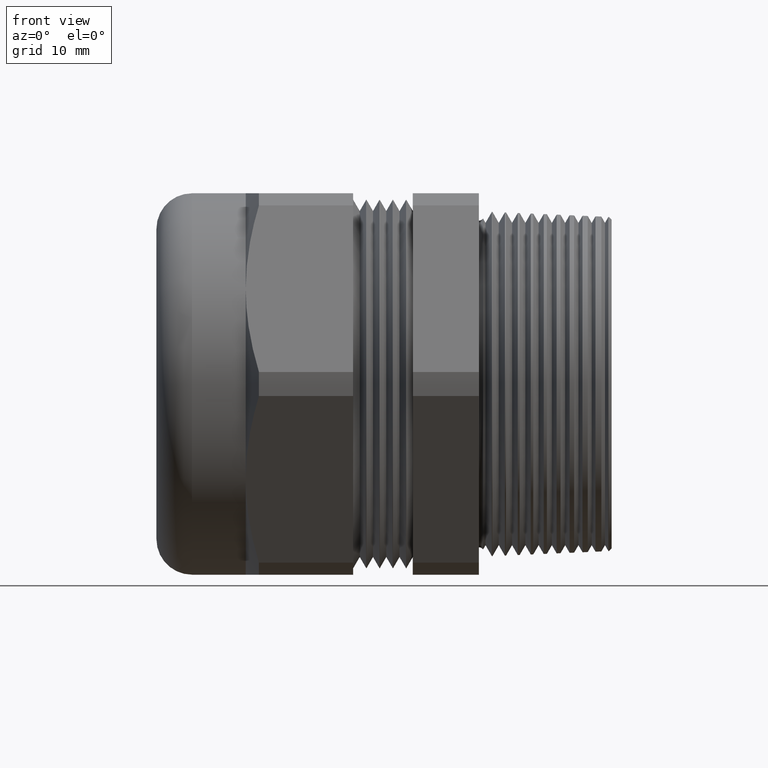
[diagram: clean part render]
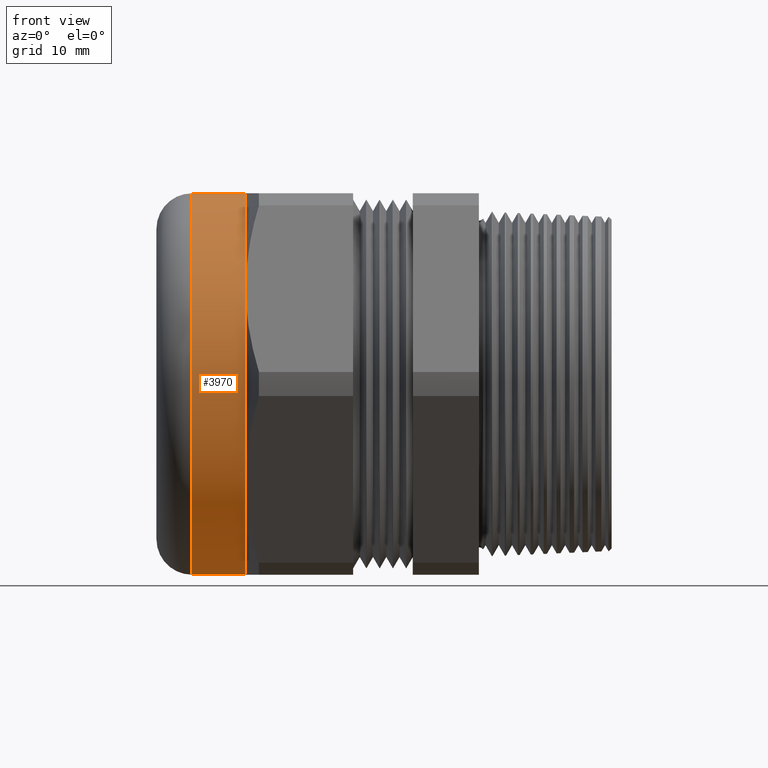
[diagram: same view with one face highlighted and labeled with its STEP entity id]
A machine part, front view. The second image highlights one B-rep face of the part: STEP entity #3970.
In plain terms, the highlighted cylindrical surface (partial cylindrical patch) has radius 22.987 mm, axis along (-1, 0, 0).
Its self-contained STEP definition (entity closure, byte-faithful):
#265 = VERTEX_POINT ( 'NONE', #1580 ) ;
#266 = VERTEX_POINT ( 'NONE', #1579 ) ;
#443 = VERTEX_POINT ( 'NONE', #1920 ) ;
#831 = VERTEX_POINT ( 'NONE', #2674 ) ;
#874 = EDGE_CURVE ( 'NONE', #876, #265, #2776, .T. ) ;
#876 = VERTEX_POINT ( 'NONE', #2772 ) ;
#881 = VERTEX_POINT ( 'NONE', #2764 ) ;
#884 = EDGE_CURVE ( 'NONE', #881, #266, #2757, .T. ) ;
#1579 = CARTESIAN_POINT ( 'NONE',  ( -1.361399999999999900, 1.108305353228354500E-016, -0.9049999999999999200 ) ) ;
#1580 = CARTESIAN_POINT ( 'NONE',  ( -1.361399999999999900, 0.0000000000000000000, 0.9049999999999999200 ) ) ;
#1920 = CARTESIAN_POINT ( 'NONE',  ( -1.106250000000000200, -0.7837529904249169700, 0.4525000000000000100 ) ) ;
#2674 = CARTESIAN_POINT ( 'NONE',  ( -1.106250000000000200, -0.7837529904249167500, -0.4525000000000003500 ) ) ;
#2757 = LINE ( 'NONE', #2763, #2819 ) ;
#2763 = CARTESIAN_POINT ( 'NONE',  ( -0.7238591030180623300, 1.108305353228354500E-016, -0.9049999999999999200 ) ) ;
#2764 = CARTESIAN_POINT ( 'NONE',  ( -1.106250000000000200, 0.0000000000000000000, -0.9050000000000000300 ) ) ;
#2772 = CARTESIAN_POINT ( 'NONE',  ( -1.106250000000000200, 0.0000000000000000000, 0.9050000000000000300 ) ) ;
#2773 = DIRECTION ( 'NONE',  ( -1.000000000000000000, 0.0000000000000000000, 0.0000000000000000000 ) ) ;
#2774 = VECTOR ( 'NONE', #2773, 39.37007874015748100 ) ;
#2775 = CARTESIAN_POINT ( 'NONE',  ( -0.7238591030180623300, 0.0000000000000000000, 0.9049999999999999200 ) ) ;
#2776 = LINE ( 'NONE', #2775, #2774 ) ;
#2818 = DIRECTION ( 'NONE',  ( -1.000000000000000000, 0.0000000000000000000, 0.0000000000000000000 ) ) ;
#2819 = VECTOR ( 'NONE', #2818, 39.37007874015748100 ) ;
#3402 = DIRECTION ( 'NONE',  ( 0.0000000000000000000, 0.0000000000000000000, 1.000000000000000000 ) ) ;
#3403 = DIRECTION ( 'NONE',  ( -1.000000000000000000, 0.0000000000000000000, 0.0000000000000000000 ) ) ;
#3404 = CARTESIAN_POINT ( 'NONE',  ( -1.106250000000000200, 0.0000000000000000000, 0.0000000000000000000 ) ) ;
#3405 = AXIS2_PLACEMENT_3D ( 'NONE', #3404, #3403, #3402 ) ;
#3406 = CIRCLE ( 'NONE', #3405, 0.9049999999999999200 ) ;
#3411 = DIRECTION ( 'NONE',  ( 0.0000000000000000000, 0.0000000000000000000, 1.000000000000000000 ) ) ;
#3412 = DIRECTION ( 'NONE',  ( -1.000000000000000000, 0.0000000000000000000, 0.0000000000000000000 ) ) ;
#3413 = CARTESIAN_POINT ( 'NONE',  ( -0.7238591030180623300, 0.0000000000000000000, 0.0000000000000000000 ) ) ;
#3414 = AXIS2_PLACEMENT_3D ( 'NONE', #3413, #3412, #3411 ) ;
#3416 = CYLINDRICAL_SURFACE ( 'NONE', #3414, 0.9049999999999999200 ) ;
#3417 = FACE_OUTER_BOUND ( 'NONE', #3962, .T. ) ;
#3431 = DIRECTION ( 'NONE',  ( 1.000000000000000000, 0.0000000000000000000, 0.0000000000000000000 ) ) ;
#3432 = CARTESIAN_POINT ( 'NONE',  ( -1.361399999999999900, 0.0000000000000000000, 0.0000000000000000000 ) ) ;
#3433 = AXIS2_PLACEMENT_3D ( 'NONE', #3432, #3431, #3494 ) ;
#3434 = CIRCLE ( 'NONE', #3433, 0.9049999999999999200 ) ;
#3435 = DIRECTION ( 'NONE',  ( 0.0000000000000000000, 0.0000000000000000000, 1.000000000000000000 ) ) ;
#3436 = DIRECTION ( 'NONE',  ( -1.000000000000000000, 0.0000000000000000000, 0.0000000000000000000 ) ) ;
#3437 = CARTESIAN_POINT ( 'NONE',  ( -1.106250000000000200, 0.0000000000000000000, 0.0000000000000000000 ) ) ;
#3438 = AXIS2_PLACEMENT_3D ( 'NONE', #3437, #3436, #3435 ) ;
#3439 = CIRCLE ( 'NONE', #3438, 0.9049999999999999200 ) ;
#3457 = DIRECTION ( 'NONE',  ( 0.0000000000000000000, 0.0000000000000000000, 1.000000000000000000 ) ) ;
#3458 = DIRECTION ( 'NONE',  ( -1.000000000000000000, 0.0000000000000000000, 0.0000000000000000000 ) ) ;
#3459 = CARTESIAN_POINT ( 'NONE',  ( -1.106250000000000200, 0.0000000000000000000, 0.0000000000000000000 ) ) ;
#3460 = AXIS2_PLACEMENT_3D ( 'NONE', #3459, #3458, #3457 ) ;
#3461 = CIRCLE ( 'NONE', #3460, 0.9049999999999999200 ) ;
#3494 = DIRECTION ( 'NONE',  ( 0.0000000000000000000, 0.0000000000000000000, -1.000000000000000000 ) ) ;
#3954 = ORIENTED_EDGE ( 'NONE', *, *, #3977, .T. ) ;
#3961 = ORIENTED_EDGE ( 'NONE', *, *, #884, .F. ) ;
#3962 = EDGE_LOOP ( 'NONE', ( #3961, #3954, #3975, #4004, #4003, #4010 ) ) ;
#3970 = ADVANCED_FACE ( 'NONE', ( #3417 ), #3416, .T. ) ;
#3975 = ORIENTED_EDGE ( 'NONE', *, *, #3988, .T. ) ;
#3977 = EDGE_CURVE ( 'NONE', #881, #831, #3406, .T. ) ;
#3988 = EDGE_CURVE ( 'NONE', #831, #443, #3461, .T. ) ;
#4003 = ORIENTED_EDGE ( 'NONE', *, *, #874, .T. ) ;
#4004 = ORIENTED_EDGE ( 'NONE', *, *, #4005, .T. ) ;
#4005 = EDGE_CURVE ( 'NONE', #443, #876, #3439, .T. ) ;
#4008 = EDGE_CURVE ( 'NONE', #265, #266, #3434, .T. ) ;
#4010 = ORIENTED_EDGE ( 'NONE', *, *, #4008, .T. ) ;